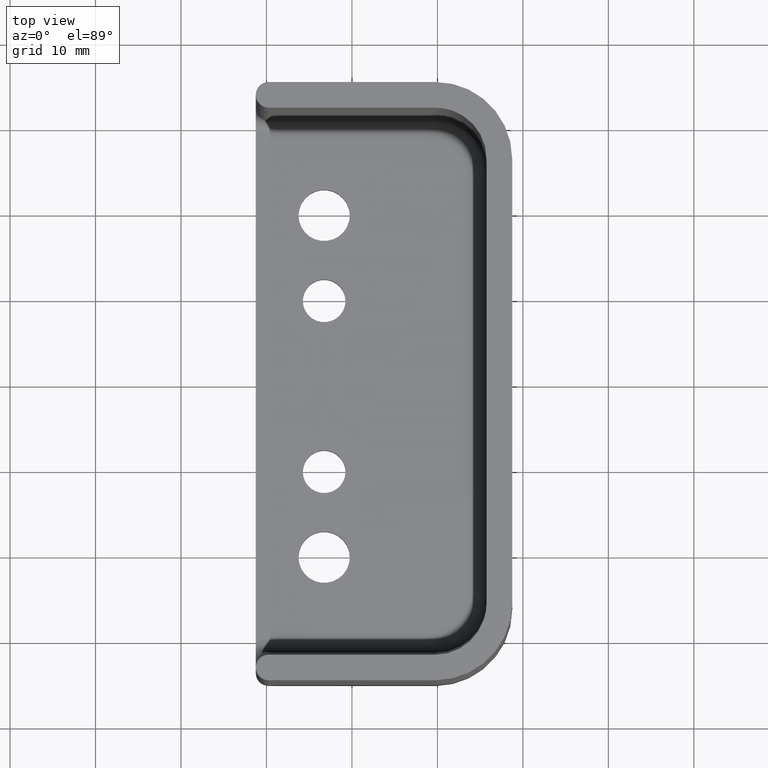
[diagram: clean part render]
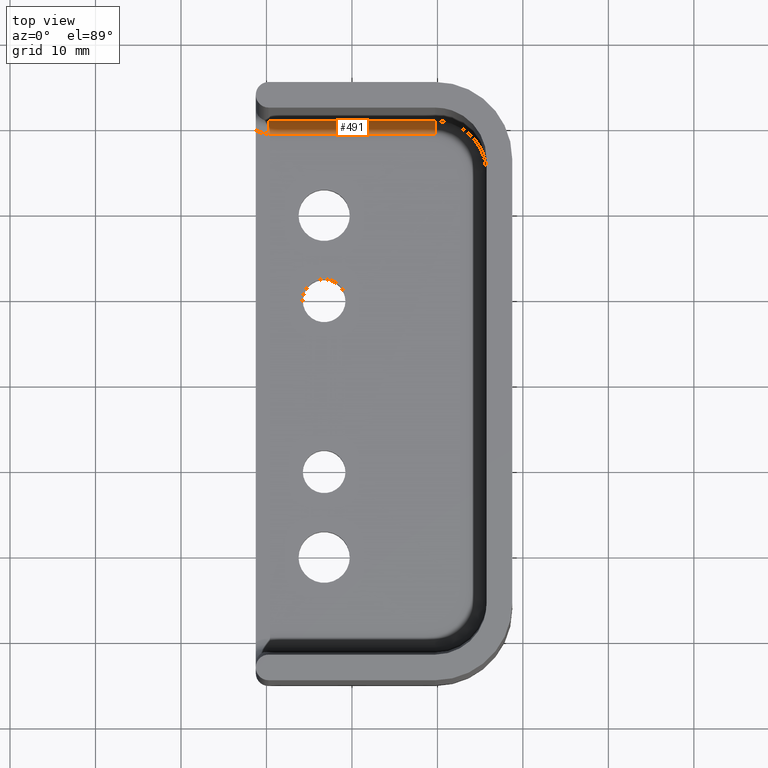
[diagram: same view with one face highlighted and labeled with its STEP entity id]
A machine part, top view. The second image highlights one B-rep face of the part: STEP entity #491.
In plain terms, the highlighted cylindrical surface (edge-blend (fillet) strip) has radius 1.5 mm, axis along (1, 0, 0).
Its self-contained STEP definition (entity closure, byte-faithful):
#31=LINE('',#925,#64);
#32=LINE('',#926,#65);
#64=VECTOR('',#637,19.5);
#65=VECTOR('',#638,19.5);
#131=FACE_OUTER_BOUND('',#164,.T.);
#164=EDGE_LOOP('',(#360,#361,#362,#363));
#202=CIRCLE('',#535,1.5);
#204=CIRCLE('',#538,1.5);
#231=VERTEX_POINT('',#869);
#233=VERTEX_POINT('',#872);
#235=VERTEX_POINT('',#907);
#236=VERTEX_POINT('',#908);
#281=EDGE_CURVE('',#233,#231,#202,.T.);
#284=EDGE_CURVE('',#235,#236,#204,.T.);
#288=EDGE_CURVE('',#231,#236,#31,.T.);
#289=EDGE_CURVE('',#235,#233,#32,.T.);
#360=ORIENTED_EDGE('',*,*,#281,.T.);
#361=ORIENTED_EDGE('',*,*,#288,.T.);
#362=ORIENTED_EDGE('',*,*,#284,.F.);
#363=ORIENTED_EDGE('',*,*,#289,.T.);
#472=CYLINDRICAL_SURFACE('',#541,1.5);
#491=ADVANCED_FACE('',(#131),#472,.F.);
#535=AXIS2_PLACEMENT_3D('',#873,#623,#624);
#538=AXIS2_PLACEMENT_3D('',#909,#629,#630);
#541=AXIS2_PLACEMENT_3D('',#924,#635,#636);
#623=DIRECTION('center_axis',(1.,0.,0.));
#624=DIRECTION('ref_axis',(0.,0.,-1.));
#629=DIRECTION('center_axis',(1.,0.,0.));
#630=DIRECTION('ref_axis',(0.,0.,-1.));
#635=DIRECTION('center_axis',(1.,0.,0.));
#636=DIRECTION('ref_axis',(0.,0.696539214945896,-0.717518725917697));
#637=DIRECTION('',(-1.,0.,0.));
#638=DIRECTION('',(1.,0.,0.));
#869=CARTESIAN_POINT('',(9.75000000000018,31.0192621542959,-13.5444993661277));
#872=CARTESIAN_POINT('',(9.75000000000018,29.5199223641169,-15.));
#873=CARTESIAN_POINT('Origin',(9.75000000000018,29.5199223641169,-13.5));
#907=CARTESIAN_POINT('',(-9.74999999999981,29.5199223641169,-15.));
#908=CARTESIAN_POINT('',(-9.74999999999981,31.0192621542959,-13.5444993661277));
#909=CARTESIAN_POINT('Origin',(-9.74999999999981,29.5199223641169,-13.5));
#924=CARTESIAN_POINT('Origin',(-11.2499999999998,29.5199223641169,-13.5));
#925=CARTESIAN_POINT('',(-11.2499999999998,31.0192621542959,-13.5444993661277));
#926=CARTESIAN_POINT('',(-11.2499999999998,29.5199223641169,-15.));